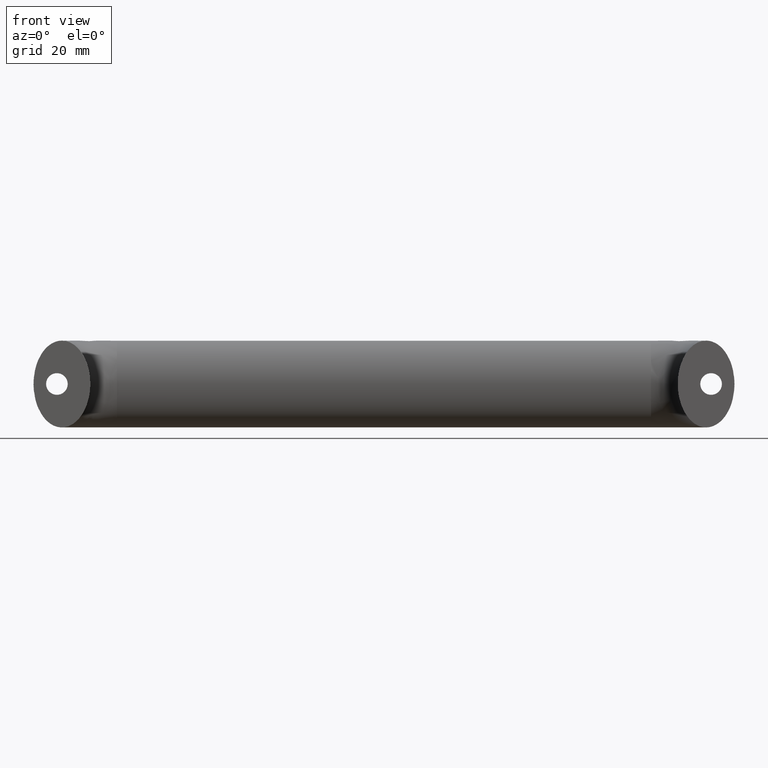
[diagram: clean part render]
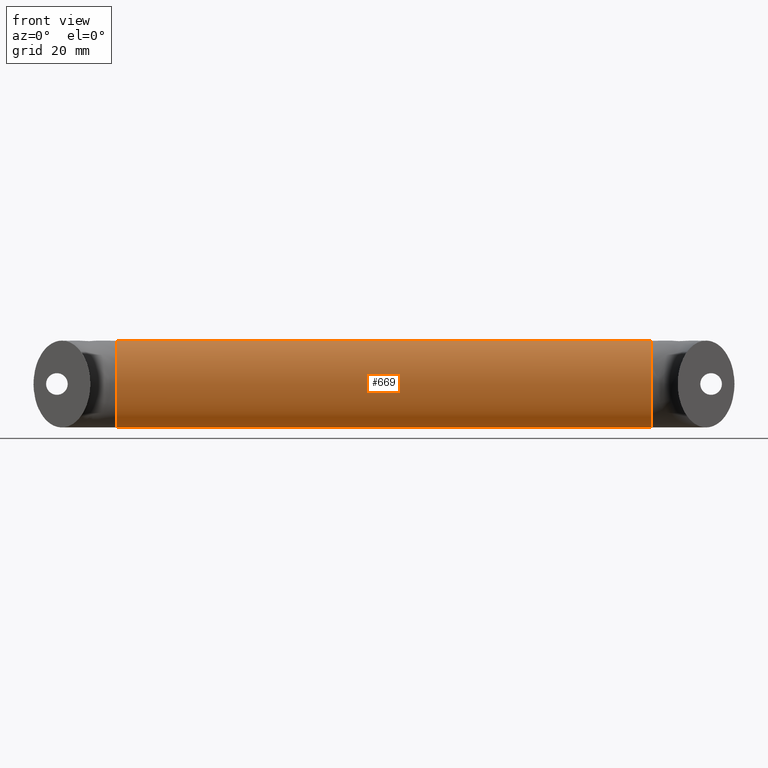
[diagram: same view with one face highlighted and labeled with its STEP entity id]
A machine part, front view. The second image highlights one B-rep face of the part: STEP entity #669.
In plain terms, the highlighted face is a freeform B-spline surface patch.
Its self-contained STEP definition (entity closure, byte-faithful):
#162=FACE_OUTER_BOUND('',#211,.T.);
#211=EDGE_LOOP('',(#470,#471,#472,#473));
#276=B_SPLINE_CURVE_WITH_KNOTS('',1,(#1018,#1019),.UNSPECIFIED.,.F.,.F.,
(2,2),(-6.15384615384616,6.15384615384615),.UNSPECIFIED.);
#299=ELLIPSE('',#720,13.,8.5);
#300=ELLIPSE('',#721,13.,8.5);
#311=VERTEX_POINT('',#1015);
#312=VERTEX_POINT('',#1017);
#373=EDGE_CURVE('',#311,#311,#299,.T.);
#374=EDGE_CURVE('',#311,#312,#276,.T.);
#375=EDGE_CURVE('',#312,#312,#300,.T.);
#470=ORIENTED_EDGE('',*,*,#373,.F.);
#471=ORIENTED_EDGE('',*,*,#374,.T.);
#472=ORIENTED_EDGE('',*,*,#375,.T.);
#473=ORIENTED_EDGE('',*,*,#374,.F.);
#664=(
BOUNDED_SURFACE()
B_SPLINE_SURFACE(1,2,((#997,#998,#999,#1000,#1001,#1002,#1003,#1004,#1005),
(#1006,#1007,#1008,#1009,#1010,#1011,#1012,#1013,#1014)),.UNSPECIFIED.,
 .F.,.T.,.F.)
B_SPLINE_SURFACE_WITH_KNOTS((2,2),(3,2,2,2,3),(-6.15384615384615,6.15384615384616),
(-3.14159265358979,-1.5707963267949,0.,1.5707963267949,3.14159265358979),
 .UNSPECIFIED.)
GEOMETRIC_REPRESENTATION_ITEM()
RATIONAL_B_SPLINE_SURFACE(((1.,0.707106781186548,1.,0.707106781186548,1.,
0.707106781186548,1.,0.707106781186548,1.),(1.,0.707106781186548,1.,0.707106781186548,
1.,0.707106781186548,1.,0.707106781186548,1.)))
REPRESENTATION_ITEM('')
SURFACE()
);
#669=ADVANCED_FACE('',(#162),#664,.F.);
#720=AXIS2_PLACEMENT_3D('',#1016,#806,#807);
#721=AXIS2_PLACEMENT_3D('',#1020,#808,#809);
#806=DIRECTION('center_axis',(1.,6.12323399573677E-17,0.));
#807=DIRECTION('ref_axis',(0.,0.,-1.));
#808=DIRECTION('center_axis',(1.,6.12323399573677E-17,0.));
#809=DIRECTION('ref_axis',(0.,0.,-1.));
#997=CARTESIAN_POINT('Ctrl Pts',(16.5,48.5000000000001,-13.));
#998=CARTESIAN_POINT('Ctrl Pts',(16.5,57.0000000000001,-13.));
#999=CARTESIAN_POINT('Ctrl Pts',(16.5,57.0000000000001,0.));
#1000=CARTESIAN_POINT('Ctrl Pts',(16.5,57.0000000000001,13.));
#1001=CARTESIAN_POINT('Ctrl Pts',(16.5,48.5000000000001,13.));
#1002=CARTESIAN_POINT('Ctrl Pts',(16.5,40.0000000000001,13.));
#1003=CARTESIAN_POINT('Ctrl Pts',(16.5,40.0000000000001,0.));
#1004=CARTESIAN_POINT('Ctrl Pts',(16.5,40.0000000000001,-13.));
#1005=CARTESIAN_POINT('Ctrl Pts',(16.5,48.5000000000001,-13.));
#1006=CARTESIAN_POINT('Ctrl Pts',(176.5,48.5000000000001,-13.));
#1007=CARTESIAN_POINT('Ctrl Pts',(176.5,57.0000000000001,-13.));
#1008=CARTESIAN_POINT('Ctrl Pts',(176.5,57.0000000000001,0.));
#1009=CARTESIAN_POINT('Ctrl Pts',(176.5,57.0000000000001,13.));
#1010=CARTESIAN_POINT('Ctrl Pts',(176.5,48.5000000000001,13.));
#1011=CARTESIAN_POINT('Ctrl Pts',(176.5,40.0000000000001,13.));
#1012=CARTESIAN_POINT('Ctrl Pts',(176.5,40.0000000000001,0.));
#1013=CARTESIAN_POINT('Ctrl Pts',(176.5,40.0000000000001,-13.));
#1014=CARTESIAN_POINT('Ctrl Pts',(176.5,48.5000000000001,-13.));
#1015=CARTESIAN_POINT('',(176.5,48.5000000000001,-13.));
#1016=CARTESIAN_POINT('Origin',(176.5,48.5000000000001,0.));
#1017=CARTESIAN_POINT('',(16.5,48.5,-13.));
#1018=CARTESIAN_POINT('Ctrl Pts',(176.5,48.5000000000001,-13.));
#1019=CARTESIAN_POINT('Ctrl Pts',(16.5,48.5000000000001,-13.));
#1020=CARTESIAN_POINT('Origin',(16.5,48.5,0.));